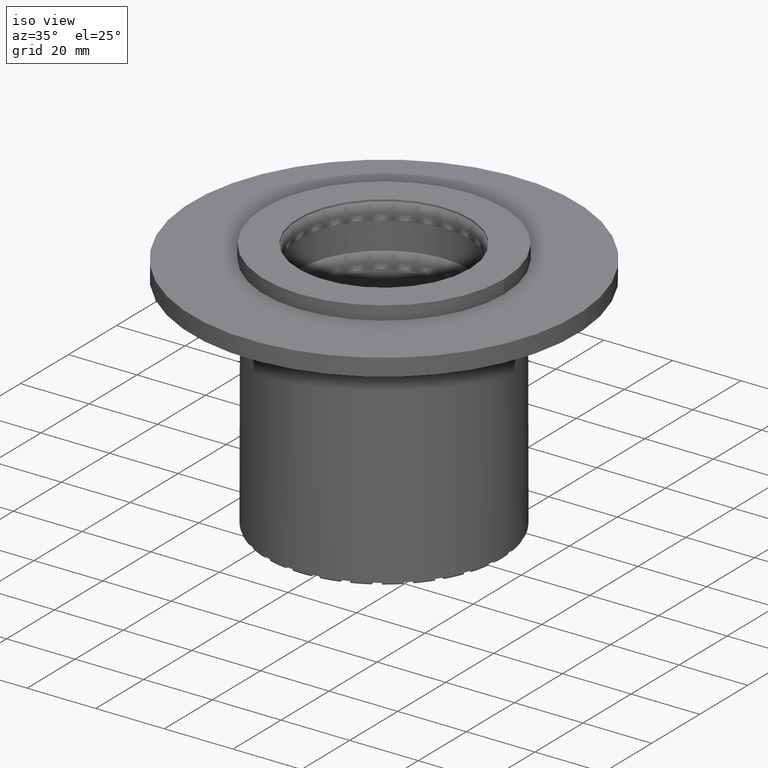
[diagram: clean part render]
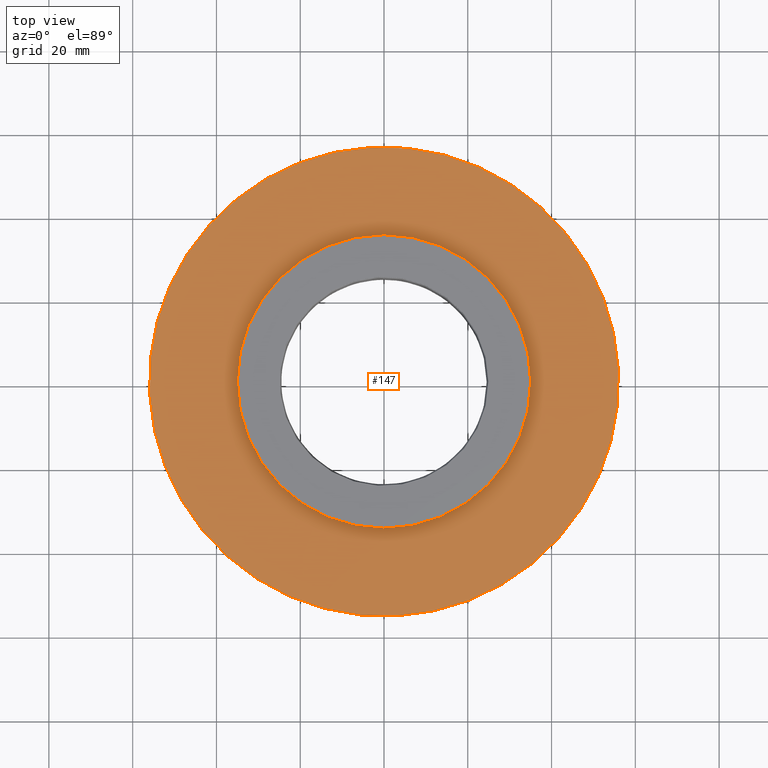
[diagram: tour spotlight — one face highlighted and labeled with its STEP entity id]
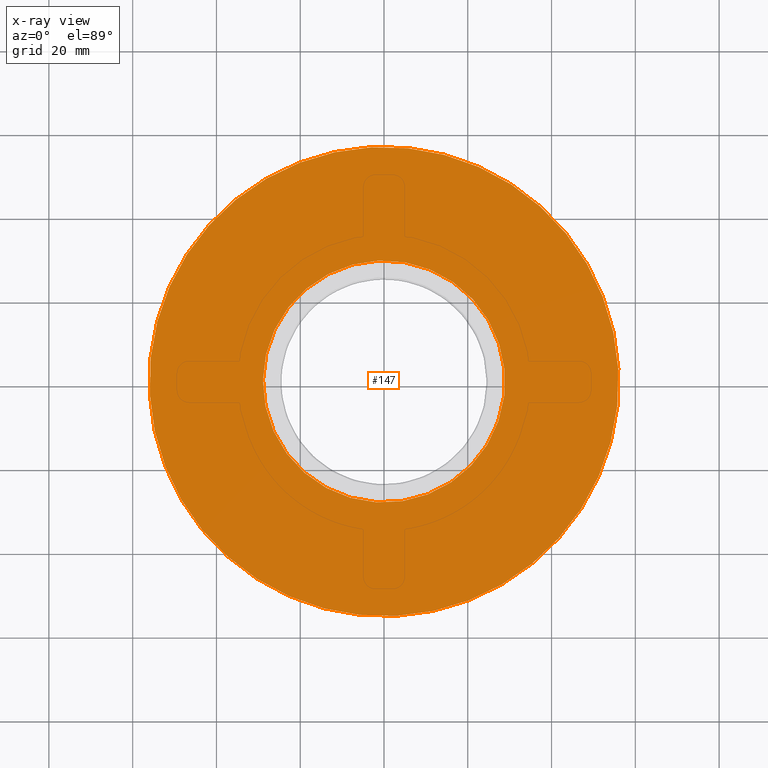
[diagram: x-ray of the same camera — body ghosted, this tour face saturated]
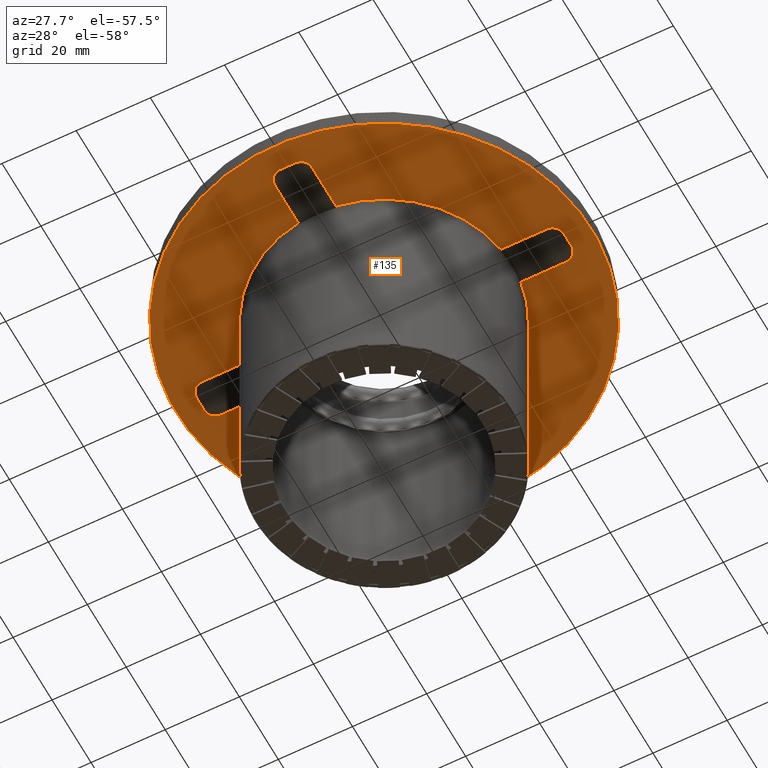
[diagram: tour spotlight — one face highlighted and labeled with its STEP entity id]
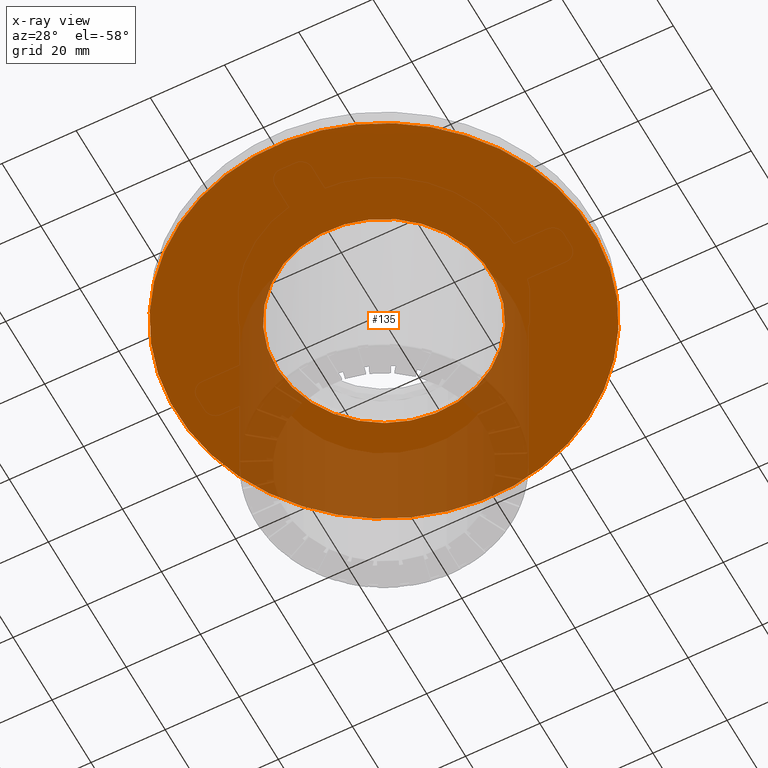
[diagram: x-ray of the same camera — body ghosted, this tour face saturated]
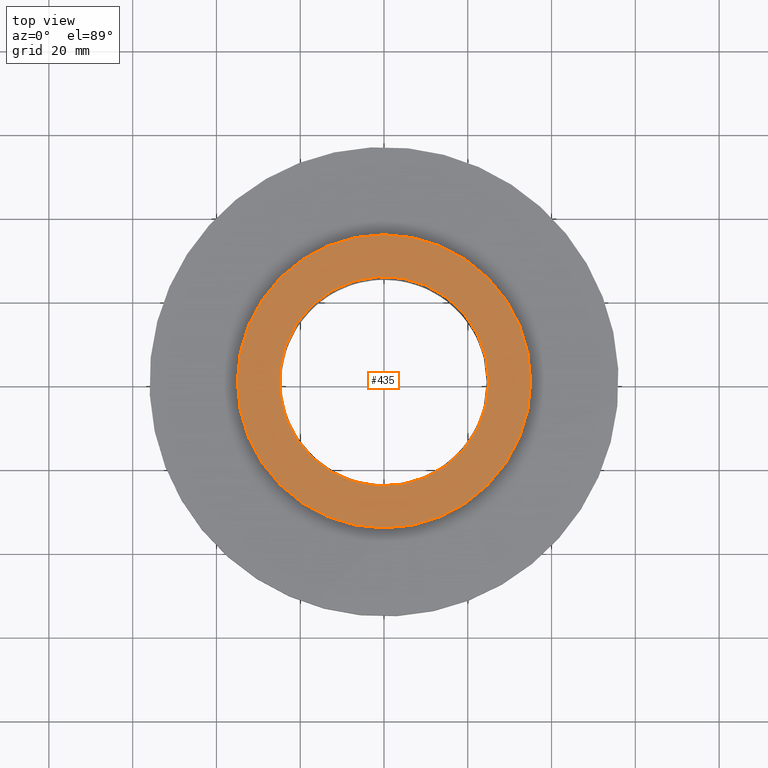
[diagram: tour spotlight — one face highlighted and labeled with its STEP entity id]
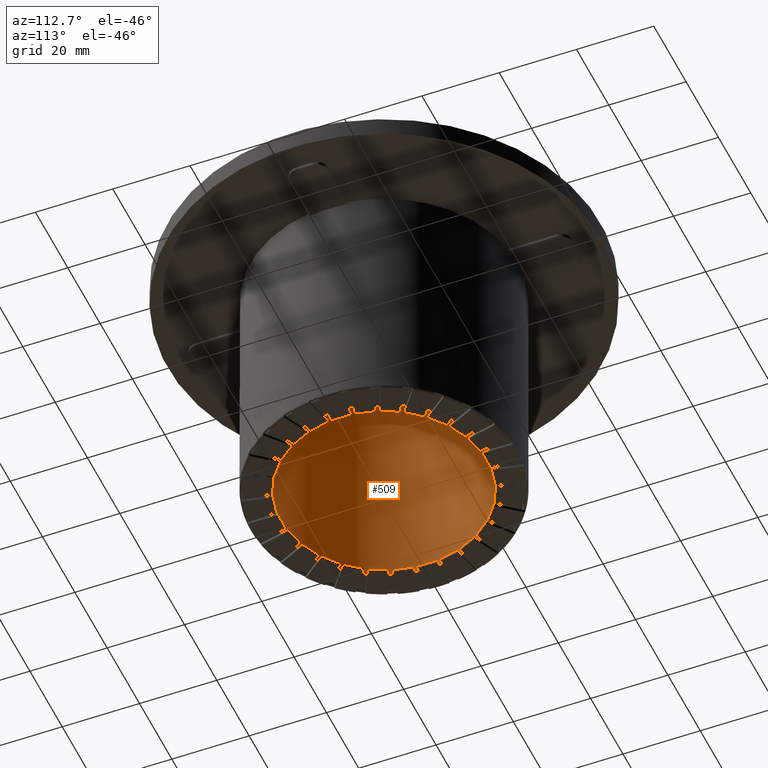
[diagram: tour spotlight — one face highlighted and labeled with its STEP entity id]
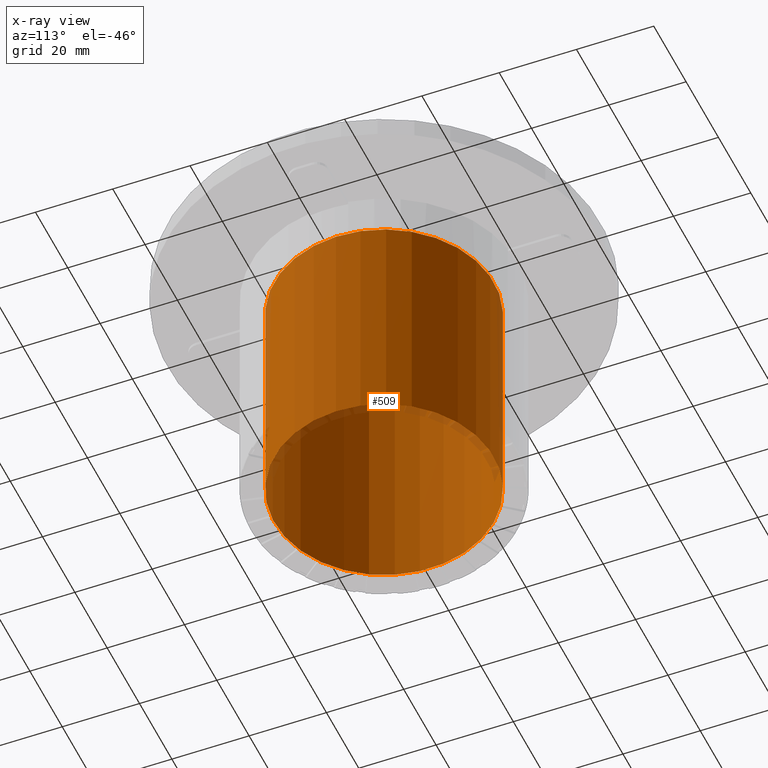
[diagram: x-ray of the same camera — body ghosted, this tour face saturated]
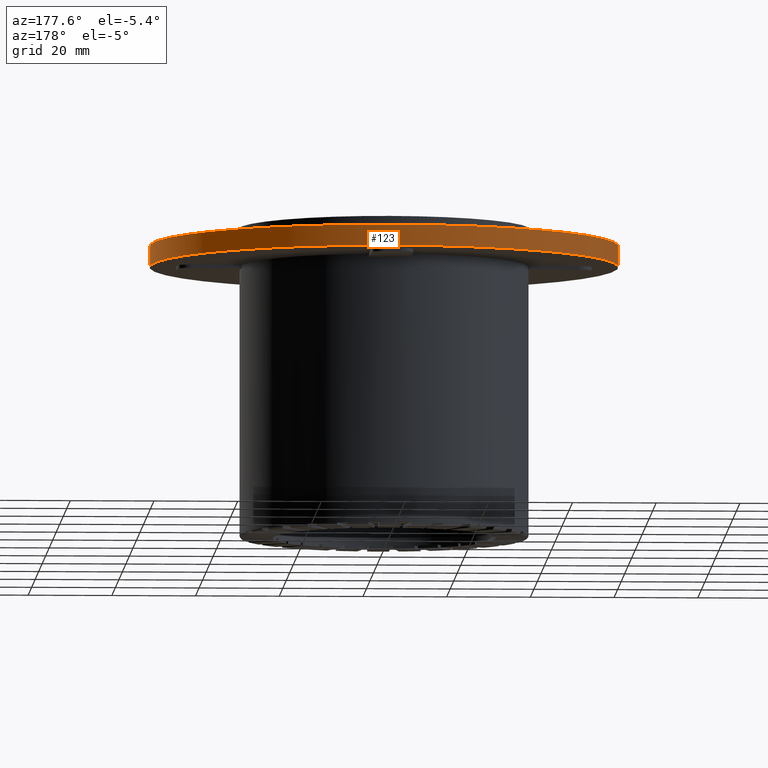
[diagram: tour spotlight — one face highlighted and labeled with its STEP entity id]
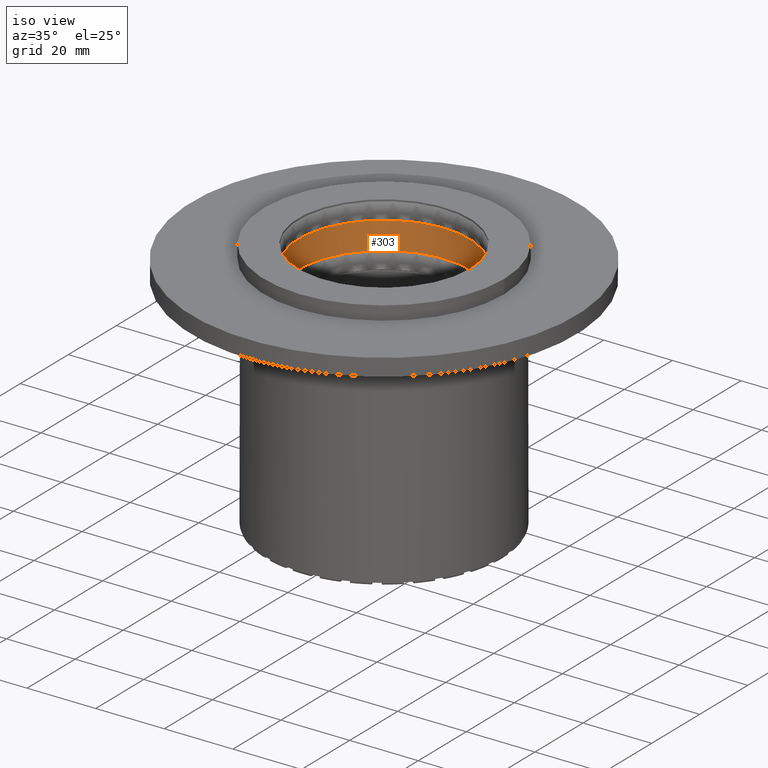
[diagram: tour spotlight — one face highlighted and labeled with its STEP entity id]
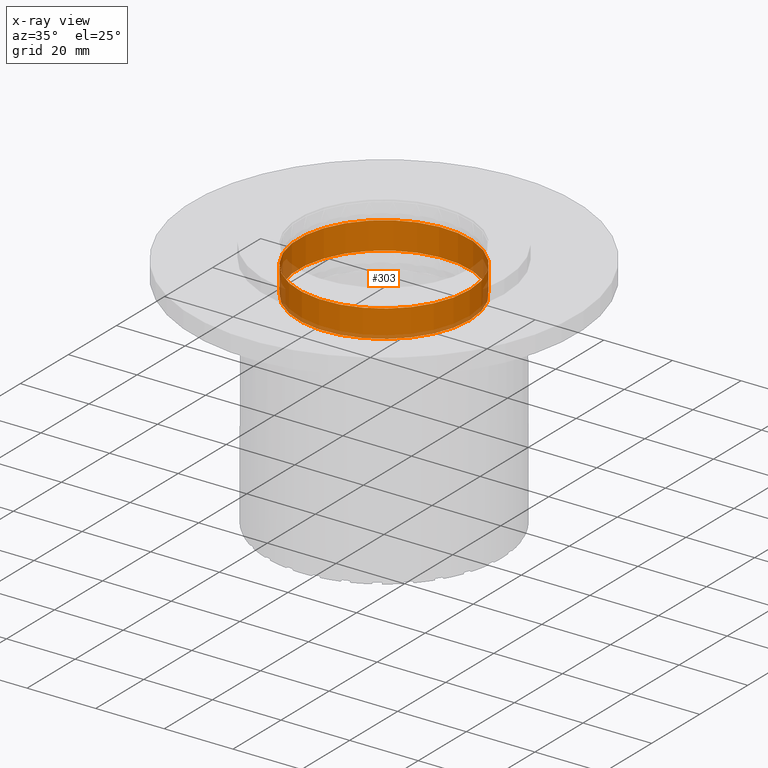
[diagram: x-ray of the same camera — body ghosted, this tour face saturated]
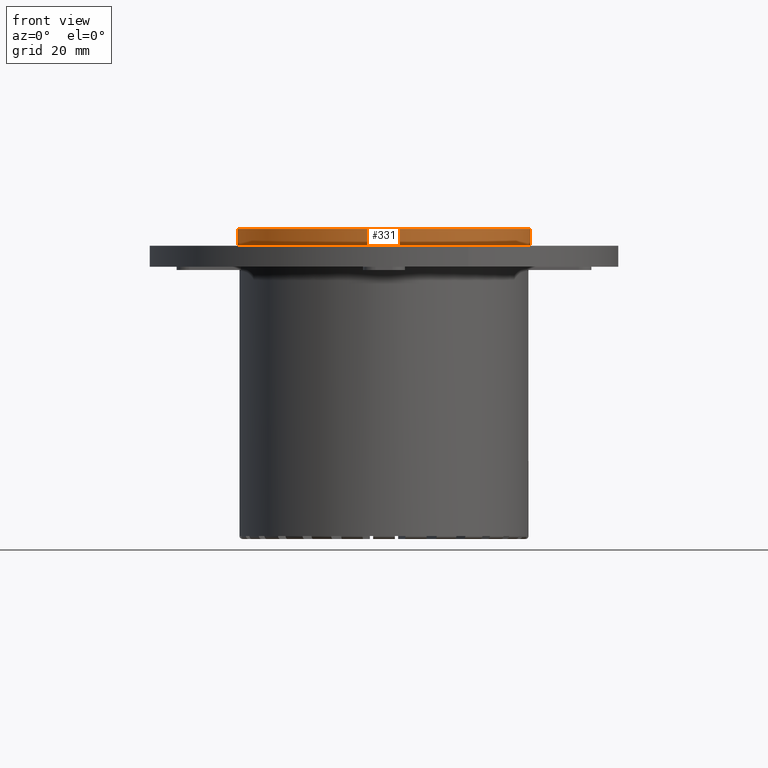
[diagram: tour spotlight — one face highlighted and labeled with its STEP entity id]
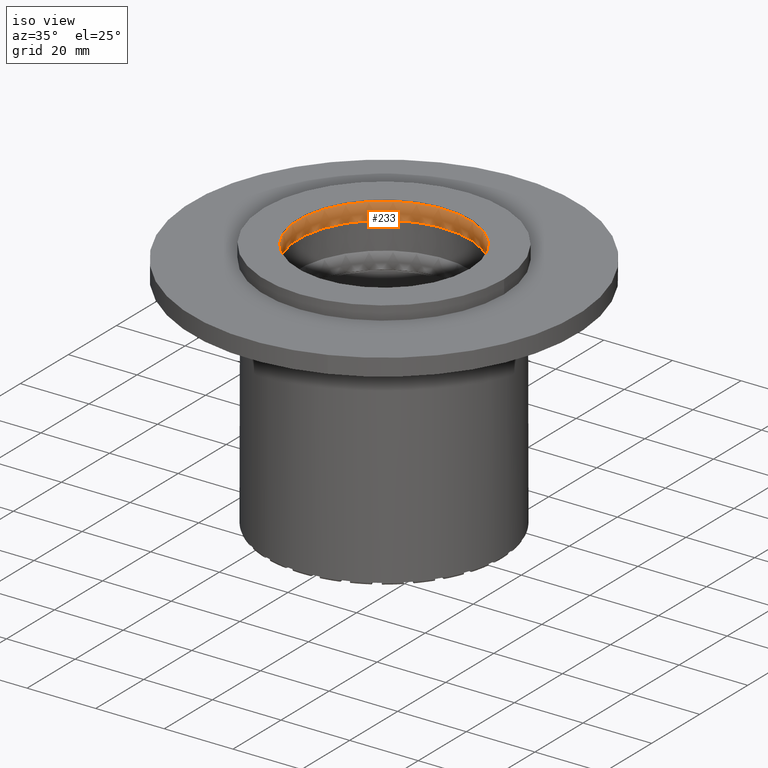
[diagram: tour spotlight — one face highlighted and labeled with its STEP entity id]
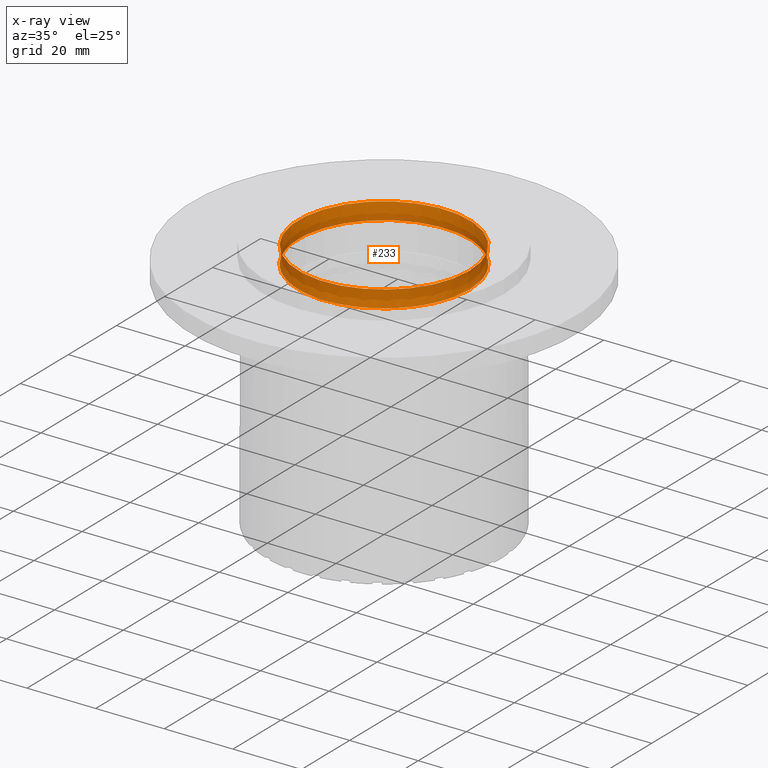
[diagram: x-ray of the same camera — body ghosted, this tour face saturated]
A machine part: a face-by-face anatomy tour. The part has 246 B-rep faces; the first image is the clean iso view, then the 8 largest visible faces are spotlighted one at a time (largest first), each with its STEP entity span.

Face 1 — top view, entity #147. An x-ray twin of the same camera follows (body ghosted, this face saturated) — the face is partly hidden behind the body. In plain terms, the highlighted planar face has unit normal (0, 0, 1).
Definition (entity closure, byte-faithful):
#84=CARTESIAN_POINT('',(10.423763797603328,-26.954686944792652,69.299999999999969));
#85=VERTEX_POINT('',#84);
#86=CARTESIAN_POINT('',(8.881784E-015,-1.776357E-014,69.299999999999983));
#87=DIRECTION('',(-8.008791E-017,2.070984E-016,-1.0));
#88=DIRECTION('',(-0.360683868429181,0.9326881295776,2.220446E-016));
#89=AXIS2_PLACEMENT_3D('',#86,#87,#88);
#90=CIRCLE('',#89,28.900000000000002);
#91=EDGE_CURVE('',#85,#85,#90,.T.);
#112=CARTESIAN_POINT('',(20.198296632034129,-52.230535256345611,69.299999999999969));
#113=VERTEX_POINT('',#112);
#114=CARTESIAN_POINT('',(8.881784E-015,-1.776357E-014,69.299999999999983));
#115=DIRECTION('',(8.008791E-017,-2.070984E-016,1.0));
#116=DIRECTION('',(-0.360683868429181,0.9326881295776,2.220446E-016));
#117=AXIS2_PLACEMENT_3D('',#114,#115,#116);
#118=CIRCLE('',#117,56.000000000000007);
#119=EDGE_CURVE('',#113,#113,#118,.T.);
#136=CARTESIAN_POINT('',(8.881784E-015,-1.776357E-014,69.299999999999983));
#137=DIRECTION('',(0.0,0.0,1.0));
#138=DIRECTION('',(-0.360683868429181,0.9326881295776,0.0));
#139=AXIS2_PLACEMENT_3D('',#136,#137,#138);
#140=PLANE('',#139);
#141=ORIENTED_EDGE('',*,*,#119,.T.);
#142=EDGE_LOOP('',(#141));
#143=FACE_OUTER_BOUND('',#142,.T.);
#144=ORIENTED_EDGE('',*,*,#91,.T.);
#145=EDGE_LOOP('',(#144));
#146=FACE_BOUND('',#145,.T.);
#147=ADVANCED_FACE('',(#143,#146),#140,.T.);

Face 2 — auxiliary view, entity #135. An x-ray twin of the same camera follows (body ghosted, this face saturated) — the face is partly hidden behind the body. In plain terms, the highlighted planar face has unit normal (0, 0, 1).
Definition (entity closure, byte-faithful):
#73=CARTESIAN_POINT('',(10.423763797603327,-26.954686944792652,64.299999999999969));
#74=VERTEX_POINT('',#73);
#75=CARTESIAN_POINT('',(7.575289E-015,-1.707846E-014,64.299999999999983));
#76=DIRECTION('',(8.008791E-017,-2.070984E-016,1.0));
#77=DIRECTION('',(-0.360683868429181,0.9326881295776,2.220446E-016));
#78=AXIS2_PLACEMENT_3D('',#75,#76,#77);
#79=CIRCLE('',#78,28.900000000000002);
#80=EDGE_CURVE('',#74,#74,#79,.T.);
#101=CARTESIAN_POINT('',(20.198296632034129,-52.230535256345611,64.299999999999969));
#102=VERTEX_POINT('',#101);
#103=CARTESIAN_POINT('',(7.575289E-015,-1.707846E-014,64.299999999999983));
#104=DIRECTION('',(8.008791E-017,-2.070984E-016,1.0));
#105=DIRECTION('',(-0.360683868429181,0.9326881295776,2.220446E-016));
#106=AXIS2_PLACEMENT_3D('',#103,#104,#105);
#107=CIRCLE('',#106,56.000000000000007);
#108=EDGE_CURVE('',#102,#102,#107,.T.);
#124=CARTESIAN_POINT('',(7.575289E-015,-1.707846E-014,64.299999999999983));
#125=DIRECTION('',(0.0,0.0,1.0));
#126=DIRECTION('',(-0.360683868429181,0.9326881295776,0.0));
#127=AXIS2_PLACEMENT_3D('',#124,#125,#126);
#128=PLANE('',#127);
#129=ORIENTED_EDGE('',*,*,#108,.F.);
#130=EDGE_LOOP('',(#129));
#131=FACE_OUTER_BOUND('',#130,.T.);
#132=ORIENTED_EDGE('',*,*,#80,.T.);
#133=EDGE_LOOP('',(#132));
#134=FACE_BOUND('',#133,.T.);
#135=ADVANCED_FACE('',(#131,#134),#128,.F.);

Face 3 — top view, entity #435. In plain terms, the highlighted planar face has unit normal (0, 0, 1).
Definition (entity closure, byte-faithful):
#320=CARTESIAN_POINT('',(35.000000000000007,-2.924170E-014,73.299999999999997));
#321=VERTEX_POINT('',#320);
#322=CARTESIAN_POINT('',(6.861691E-015,-2.924170E-014,73.299999999999997));
#323=DIRECTION('',(0.0,0.0,-1.0));
#324=DIRECTION('',(1.0,0.0,0.0));
#325=AXIS2_PLACEMENT_3D('',#322,#323,#324);
#326=CIRCLE('',#325,35.0);
#327=EDGE_CURVE('',#321,#321,#326,.T.);
#412=CARTESIAN_POINT('',(25.000000000000004,-2.924170E-014,73.299999999999997));
#413=VERTEX_POINT('',#412);
#414=CARTESIAN_POINT('',(6.861691E-015,-2.924170E-014,73.299999999999997));
#415=DIRECTION('',(0.0,0.0,-1.0));
#416=DIRECTION('',(1.0,0.0,0.0));
#417=AXIS2_PLACEMENT_3D('',#414,#415,#416);
#418=CIRCLE('',#417,24.999999999999996);
#419=EDGE_CURVE('',#413,#413,#418,.T.);
#424=CARTESIAN_POINT('',(30.000000000000007,-2.924170E-014,73.299999999999997));
#425=DIRECTION('',(0.0,0.0,1.0));
#426=DIRECTION('',(0.0,-1.0,0.0));
#427=AXIS2_PLACEMENT_3D('',#424,#425,#426);
#428=PLANE('',#427);
#429=ORIENTED_EDGE('',*,*,#327,.F.);
#430=EDGE_LOOP('',(#429));
#431=FACE_OUTER_BOUND('',#430,.T.);
#432=ORIENTED_EDGE('',*,*,#419,.T.);
#433=EDGE_LOOP('',(#432));
#434=FACE_BOUND('',#433,.T.);
#435=ADVANCED_FACE('',(#431,#434),#428,.T.);

Face 4 — auxiliary view, entity #509. An x-ray twin of the same camera follows (body ghosted, this face saturated) — the face is partly hidden behind the body. In plain terms, the highlighted cylindrical surface (bore or boss wall) has radius 28.4 mm, axis along (0, -0, 1).
Definition (entity closure, byte-faithful):
#482=CARTESIAN_POINT('',(8.881784E-015,-1.395672E-016,-4.440892E-015));
#483=DIRECTION('',(6.938894E-018,-5.777790E-034,1.0));
#484=DIRECTION('',(-0.999821469340045,0.018895222854269,6.937655E-018));
#485=AXIS2_PLACEMENT_3D('',#482,#483,#484);
#486=CYLINDRICAL_SURFACE('',#485,28.399999999999999);
#487=CARTESIAN_POINT('',(28.394929729257296,-0.536624329061236,60.000000000000014));
#488=VERTEX_POINT('',#487);
#489=CARTESIAN_POINT('',(9.298118E-015,-1.395672E-016,60.000000000000014));
#490=DIRECTION('',(-6.936417E-018,1.310885E-019,-1.0));
#491=DIRECTION('',(-0.999821469340045,0.018895222854269,6.937655E-018));
#492=AXIS2_PLACEMENT_3D('',#489,#490,#491);
#493=CIRCLE('',#492,28.399999999999995);
#494=EDGE_CURVE('',#488,#488,#493,.T.);
#495=ORIENTED_EDGE('',*,*,#494,.F.);
#496=EDGE_LOOP('',(#495));
#497=FACE_OUTER_BOUND('',#496,.T.);
#498=CARTESIAN_POINT('',(28.394929729257296,-0.536624329061236,-4.637922E-015));
#499=VERTEX_POINT('',#498);
#500=CARTESIAN_POINT('',(8.881784E-015,-1.395672E-016,-4.440892E-015));
#501=DIRECTION('',(6.936417E-018,-1.310885E-019,1.0));
#502=DIRECTION('',(-0.999821469340045,0.018895222854269,6.937655E-018));
#503=AXIS2_PLACEMENT_3D('',#500,#501,#502);
#504=CIRCLE('',#503,28.399999999999995);
#505=EDGE_CURVE('',#499,#499,#504,.T.);
#506=ORIENTED_EDGE('',*,*,#505,.F.);
#507=EDGE_LOOP('',(#506));
#508=FACE_BOUND('',#507,.T.);
#509=ADVANCED_FACE('',(#497,#508),#486,.F.);

Face 5 — auxiliary view, entity #123. In plain terms, the highlighted cylindrical surface (bore or boss wall) has radius 56 mm, axis along (-0, 0, -1).
Definition (entity closure, byte-faithful):
#96=CARTESIAN_POINT('',(8.881784E-015,-1.776357E-014,69.299999999999983));
#97=DIRECTION('',(-2.612990E-016,1.370214E-016,-1.0));
#98=DIRECTION('',(-0.360683868429181,0.9326881295776,2.220446E-016));
#99=AXIS2_PLACEMENT_3D('',#96,#97,#98);
#100=CYLINDRICAL_SURFACE('',#99,56.000000000000007);
#101=CARTESIAN_POINT('',(20.198296632034129,-52.230535256345611,64.299999999999969));
#102=VERTEX_POINT('',#101);
#103=CARTESIAN_POINT('',(7.575289E-015,-1.707846E-014,64.299999999999983));
#104=DIRECTION('',(8.008791E-017,-2.070984E-016,1.0));
#105=DIRECTION('',(-0.360683868429181,0.9326881295776,2.220446E-016));
#106=AXIS2_PLACEMENT_3D('',#103,#104,#105);
#107=CIRCLE('',#106,56.000000000000007);
#108=EDGE_CURVE('',#102,#102,#107,.T.);
#109=ORIENTED_EDGE('',*,*,#108,.T.);
#110=EDGE_LOOP('',(#109));
#111=FACE_OUTER_BOUND('',#110,.T.);
#112=CARTESIAN_POINT('',(20.198296632034129,-52.230535256345611,69.299999999999969));
#113=VERTEX_POINT('',#112);
#114=CARTESIAN_POINT('',(8.881784E-015,-1.776357E-014,69.299999999999983));
#115=DIRECTION('',(8.008791E-017,-2.070984E-016,1.0));
#116=DIRECTION('',(-0.360683868429181,0.9326881295776,2.220446E-016));
#117=AXIS2_PLACEMENT_3D('',#114,#115,#116);
#118=CIRCLE('',#117,56.000000000000007);
#119=EDGE_CURVE('',#113,#113,#118,.T.);
#120=ORIENTED_EDGE('',*,*,#119,.F.);
#121=EDGE_LOOP('',(#120));
#122=FACE_BOUND('',#121,.T.);
#123=ADVANCED_FACE('',(#111,#122),#100,.T.);

Face 6 — iso view, entity #303. An x-ray twin of the same camera follows (body ghosted, this face saturated) — the face is partly hidden behind the body. In plain terms, the highlighted cylindrical surface (bore or boss wall) has radius 25 mm, axis along (-0, 0, -1).
Definition (entity closure, byte-faithful):
#205=CARTESIAN_POINT('',(25.000000000000007,-2.888640E-014,67.799999999999983));
#206=VERTEX_POINT('',#205);
#224=CARTESIAN_POINT('',(6.199135E-015,-2.888640E-014,67.799999999999983));
#225=DIRECTION('',(0.0,0.0,1.0));
#226=DIRECTION('',(1.0,0.0,0.0));
#227=AXIS2_PLACEMENT_3D('',#224,#225,#226);
#228=CIRCLE('',#227,25.0);
#229=EDGE_CURVE('',#206,#206,#228,.T.);
#245=CARTESIAN_POINT('',(25.000000000000007,-2.836960E-014,59.799999999999983));
#246=VERTEX_POINT('',#245);
#254=CARTESIAN_POINT('',(5.235418E-015,-2.836960E-014,59.799999999999983));
#255=DIRECTION('',(0.0,0.0,-1.0));
#256=DIRECTION('',(1.0,0.0,0.0));
#257=AXIS2_PLACEMENT_3D('',#254,#255,#256);
#258=CIRCLE('',#257,25.0);
#259=EDGE_CURVE('',#246,#246,#258,.T.);
#292=CARTESIAN_POINT('',(5.717277E-015,-2.862800E-014,63.79999999999999));
#293=DIRECTION('',(-1.204647E-016,6.460021E-017,-1.0));
#294=DIRECTION('',(1.0,0.0,0.0));
#295=AXIS2_PLACEMENT_3D('',#292,#293,#294);
#296=CYLINDRICAL_SURFACE('',#295,25.0);
#297=ORIENTED_EDGE('',*,*,#259,.T.);
#298=EDGE_LOOP('',(#297));
#299=FACE_OUTER_BOUND('',#298,.T.);
#300=ORIENTED_EDGE('',*,*,#229,.T.);
#301=EDGE_LOOP('',(#300));
#302=FACE_BOUND('',#301,.T.);
#303=ADVANCED_FACE('',(#299,#302),#296,.F.);

Face 7 — front view, entity #331. In plain terms, the highlighted cylindrical surface (bore or boss wall) has radius 35 mm, axis along (-0, 0, -1).
Definition (entity closure, byte-faithful):
#304=CARTESIAN_POINT('',(6.620762E-015,-2.911250E-014,71.299999999999983));
#305=DIRECTION('',(-1.204647E-016,6.460021E-017,-1.0));
#306=DIRECTION('',(1.0,0.0,0.0));
#307=AXIS2_PLACEMENT_3D('',#304,#305,#306);
#308=CYLINDRICAL_SURFACE('',#307,35.0);
#309=CARTESIAN_POINT('',(35.000000000000007,-2.898330E-014,69.299999999999983));
#310=VERTEX_POINT('',#309);
#311=CARTESIAN_POINT('',(6.379832E-015,-2.898330E-014,69.299999999999997));
#312=DIRECTION('',(0.0,0.0,-1.0));
#313=DIRECTION('',(1.0,0.0,0.0));
#314=AXIS2_PLACEMENT_3D('',#311,#312,#313);
#315=CIRCLE('',#314,35.0);
#316=EDGE_CURVE('',#310,#310,#315,.T.);
#317=ORIENTED_EDGE('',*,*,#316,.F.);
#318=EDGE_LOOP('',(#317));
#319=FACE_OUTER_BOUND('',#318,.T.);
#320=CARTESIAN_POINT('',(35.000000000000007,-2.924170E-014,73.299999999999997));
#321=VERTEX_POINT('',#320);
#322=CARTESIAN_POINT('',(6.861691E-015,-2.924170E-014,73.299999999999997));
#323=DIRECTION('',(0.0,0.0,-1.0));
#324=DIRECTION('',(1.0,0.0,0.0));
#325=AXIS2_PLACEMENT_3D('',#322,#323,#324);
#326=CIRCLE('',#325,35.0);
#327=EDGE_CURVE('',#321,#321,#326,.T.);
#328=ORIENTED_EDGE('',*,*,#327,.T.);
#329=EDGE_LOOP('',(#328));
#330=FACE_BOUND('',#329,.T.);
#331=ADVANCED_FACE('',(#319,#330),#308,.T.);

Face 8 — iso view, entity #233. An x-ray twin of the same camera follows (body ghosted, this face saturated) — the face is partly hidden behind the body. In plain terms, the highlighted face is a SurfaceOfRevolution surface.
Definition (entity closure, byte-faithful):
#196=CARTESIAN_POINT('',(25.000000000000007,-2.904790E-014,70.299999999999983));
#197=DIRECTION('',(0.0,-1.0,0.0));
#198=DIRECTION('',(0.0,0.0,1.0));
#199=AXIS2_PLACEMENT_3D('',#196,#197,#198);
#200=ELLIPSE('',#199,2.5,0.5);
#201=CARTESIAN_POINT('',(6.801457E-015,-2.920940E-014,72.79998133536759));
#202=DIRECTION('',(1.204647E-016,-6.460021E-017,1.0));
#203=AXIS1_PLACEMENT('',#201,#202);
#204=SURFACE_OF_REVOLUTION('',#200,#203);
#205=CARTESIAN_POINT('',(25.000000000000007,-2.888640E-014,67.799999999999983));
#206=VERTEX_POINT('',#205);
#207=CARTESIAN_POINT('',(25.000000000000007,-2.920940E-014,72.799999999999983));
#208=VERTEX_POINT('',#207);
#209=CARTESIAN_POINT('',(25.000000000000007,-2.904790E-014,70.299999999999983));
#210=DIRECTION('',(0.0,1.0,0.0));
#211=DIRECTION('',(0.0,0.0,1.0));
#212=AXIS2_PLACEMENT_3D('',#209,#210,#211);
#213=ELLIPSE('',#212,2.5,0.5);
#214=EDGE_CURVE('',#206,#208,#213,.T.);
#215=ORIENTED_EDGE('',*,*,#214,.T.);
#216=CARTESIAN_POINT('',(6.801459E-015,-2.920940E-014,72.799999999999983));
#217=DIRECTION('',(0.0,0.0,-1.0));
#218=DIRECTION('',(1.0,0.0,0.0));
#219=AXIS2_PLACEMENT_3D('',#216,#217,#218);
#220=CIRCLE('',#219,25.0);
#221=EDGE_CURVE('',#208,#208,#220,.T.);
#222=ORIENTED_EDGE('',*,*,#221,.F.);
#223=ORIENTED_EDGE('',*,*,#214,.F.);
#224=CARTESIAN_POINT('',(6.199135E-015,-2.888640E-014,67.799999999999983));
#225=DIRECTION('',(0.0,0.0,1.0));
#226=DIRECTION('',(1.0,0.0,0.0));
#227=AXIS2_PLACEMENT_3D('',#224,#225,#226);
#228=CIRCLE('',#227,25.0);
#229=EDGE_CURVE('',#206,#206,#228,.T.);
#230=ORIENTED_EDGE('',*,*,#229,.F.);
#231=EDGE_LOOP('',(#215,#222,#223,#230));
#232=FACE_OUTER_BOUND('',#231,.T.);
#233=ADVANCED_FACE('',(#232),#204,.T.);